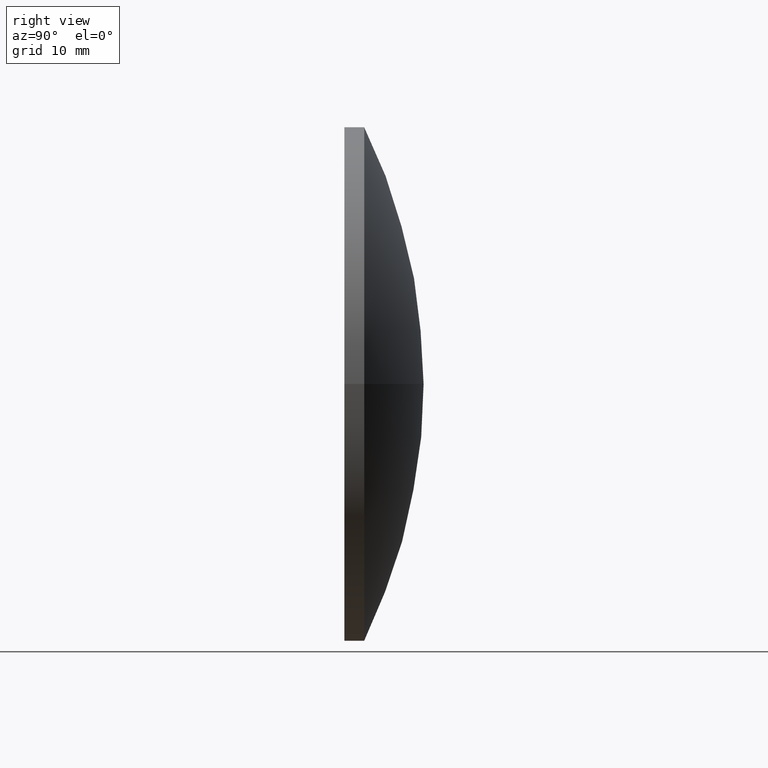
[diagram: clean part render]
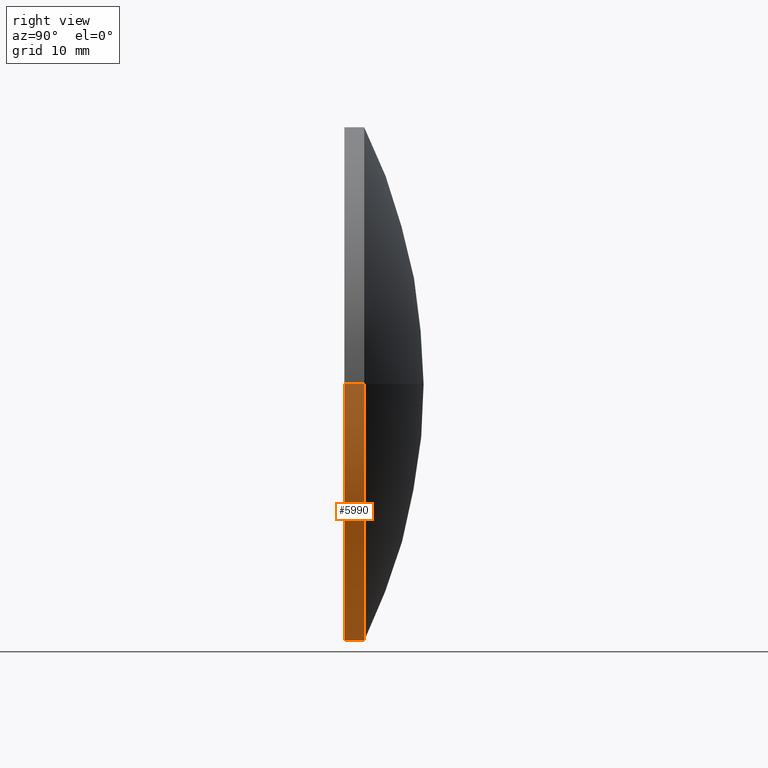
[diagram: same view with one face highlighted and labeled with its STEP entity id]
A machine part, right view. The second image highlights one B-rep face of the part: STEP entity #5990.
In plain terms, the highlighted cylindrical surface (partial cylindrical patch) has radius 26 mm, axis along (-0, -1, -0).
Its self-contained STEP definition (entity closure, byte-faithful):
#350 = DIRECTION ( 'NONE',  ( -8.266173071429340400E-015, -1.000000000000000000, -0.0000000000000000000 ) ) ;
#712 = AXIS2_PLACEMENT_3D ( 'NONE', #5946, #350, #5185 ) ;
#758 = CARTESIAN_POINT ( 'NONE',  ( -4.959703842857422200E-014, 2.116362640691704700E-013, 0.0000000000000000000 ) ) ;
#971 = LINE ( 'NONE', #10527, #1289 ) ;
#1146 = CIRCLE ( 'NONE', #8125, 26.00000000000004600 ) ;
#1289 = VECTOR ( 'NONE', #11461, 1000.000000000000000 ) ;
#1593 = CYLINDRICAL_SURFACE ( 'NONE', #712, 26.00000000000004600 ) ;
#1754 = CARTESIAN_POINT ( 'NONE',  ( 26.00000000000001400, 1.999999999999988000, 0.0000000000000000000 ) ) ;
#2017 = AXIS2_PLACEMENT_3D ( 'NONE', #5808, #10691, #2878 ) ;
#2652 = CARTESIAN_POINT ( 'NONE',  ( -26.00000000000009600, 4.265567639263336700E-013, 3.184081677783124900E-015 ) ) ;
#2878 = DIRECTION ( 'NONE',  ( 1.000000000000000000, -8.273296577735526200E-015, 0.0000000000000000000 ) ) ;
#2919 = ORIENTED_EDGE ( 'NONE', *, *, #6432, .T. ) ;
#3138 = VERTEX_POINT ( 'NONE', #2652 ) ;
#4328 = VERTEX_POINT ( 'NONE', #7330 ) ;
#5036 = DIRECTION ( 'NONE',  ( -8.266173071429340400E-015, -1.000000000000000000, -0.0000000000000000000 ) ) ;
#5077 = EDGE_LOOP ( 'NONE', ( #8772, #2919, #8645, #7419 ) ) ;
#5105 = FACE_OUTER_BOUND ( 'NONE', #5077, .T. ) ;
#5185 = DIRECTION ( 'NONE',  ( 1.000000000000000000, -8.273296577735526200E-015, 0.0000000000000000000 ) ) ;
#5622 = DIRECTION ( 'NONE',  ( 1.000000000000000000, -8.266173071429340400E-015, 0.0000000000000000000 ) ) ;
#5807 = EDGE_CURVE ( 'NONE', #3138, #4328, #1146, .T. ) ;
#5808 = CARTESIAN_POINT ( 'NONE',  ( -3.306469228571561400E-014, 2.000000000000202900, 0.0000000000000000000 ) ) ;
#5869 = VERTEX_POINT ( 'NONE', #8770 ) ;
#5922 = CARTESIAN_POINT ( 'NONE',  ( -26.00000000000004600, 6.000000000000206900, 3.184081677783124100E-015 ) ) ;
#5946 = CARTESIAN_POINT ( 'NONE',  ( 0.0000000000000000000, 5.999999999999991100, 0.0000000000000000000 ) ) ;
#5990 = ADVANCED_FACE ( 'NONE', ( #5105 ), #1593, .T. ) ;
#6432 = EDGE_CURVE ( 'NONE', #5869, #9216, #10577, .T. ) ;
#7330 = CARTESIAN_POINT ( 'NONE',  ( 26.00000000000000000, -3.284235787992766600E-015, 0.0000000000000000000 ) ) ;
#7419 = ORIENTED_EDGE ( 'NONE', *, *, #5807, .F. ) ;
#8114 = LINE ( 'NONE', #5922, #9658 ) ;
#8125 = AXIS2_PLACEMENT_3D ( 'NONE', #758, #9500, #5622 ) ;
#8221 = EDGE_CURVE ( 'NONE', #5869, #3138, #8114, .T. ) ;
#8645 = ORIENTED_EDGE ( 'NONE', *, *, #9210, .T. ) ;
#8770 = CARTESIAN_POINT ( 'NONE',  ( -26.00000000000008200, 2.000000000000418300, 3.184081677783124100E-015 ) ) ;
#8772 = ORIENTED_EDGE ( 'NONE', *, *, #8221, .F. ) ;
#9210 = EDGE_CURVE ( 'NONE', #9216, #4328, #971, .T. ) ;
#9216 = VERTEX_POINT ( 'NONE', #1754 ) ;
#9500 = DIRECTION ( 'NONE',  ( -8.266173071429340400E-015, -1.000000000000000000, -0.0000000000000000000 ) ) ;
#9658 = VECTOR ( 'NONE', #5036, 1000.000000000000000 ) ;
#10527 = CARTESIAN_POINT ( 'NONE',  ( 26.00000000000004600, 5.999999999999776200, 0.0000000000000000000 ) ) ;
#10577 = CIRCLE ( 'NONE', #2017, 26.00000000000004600 ) ;
#10691 = DIRECTION ( 'NONE',  ( -8.266173071429340400E-015, -1.000000000000000000, -0.0000000000000000000 ) ) ;
#11461 = DIRECTION ( 'NONE',  ( -8.266173071429340400E-015, -1.000000000000000000, -0.0000000000000000000 ) ) ;